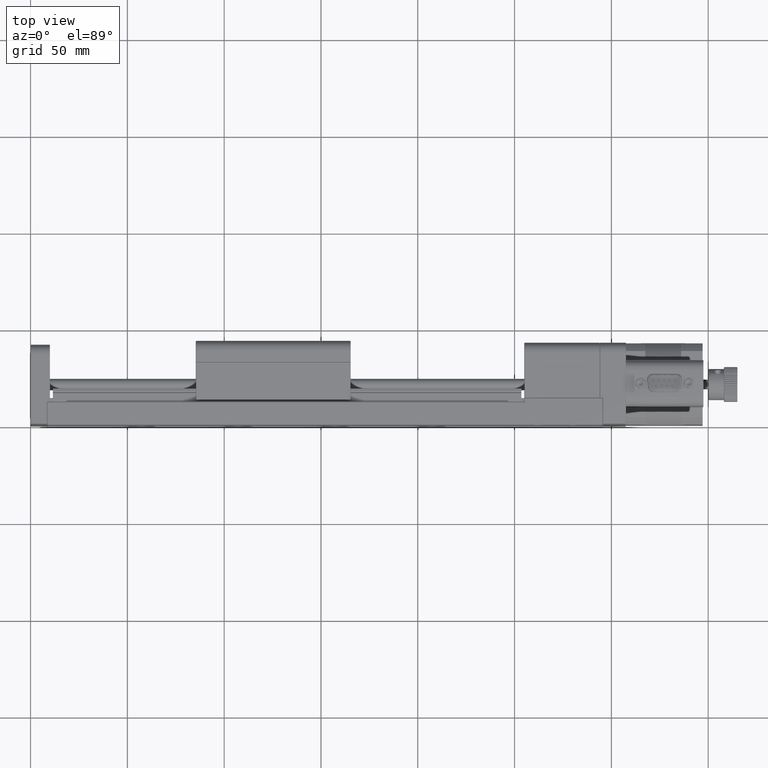
[diagram: clean part render]
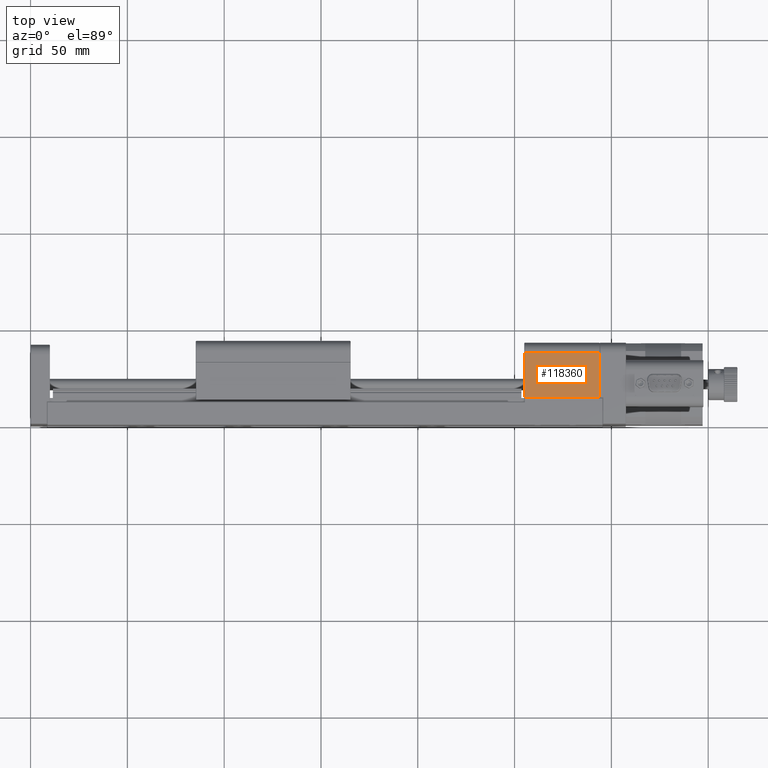
[diagram: same view with one face highlighted and labeled with its STEP entity id]
A machine part, top view. The second image highlights one B-rep face of the part: STEP entity #118360.
In plain terms, the highlighted planar face has unit normal (-0, 0, -1).
Its self-contained STEP definition (entity closure, byte-faithful):
#517 = AXIS2_PLACEMENT_3D ( 'NONE', #84631, #72528, #61881 ) ;
#1774 = VERTEX_POINT ( 'NONE', #40877 ) ;
#2677 = EDGE_CURVE ( 'NONE', #63181, #1774, #142197, .T. ) ;
#6092 = ORIENTED_EDGE ( 'NONE', *, *, #2677, .T. ) ;
#16855 = CARTESIAN_POINT ( 'NONE',  ( 293.7000000000000500, 14.30000000000000600, -6.938893903907228400E-015 ) ) ;
#17361 = VECTOR ( 'NONE', #20483, 1000.000000000000000 ) ;
#20483 = DIRECTION ( 'NONE',  ( -5.259611230495325800E-017, 1.000000000000000000, 1.531653414840118200E-016 ) ) ;
#22216 = LINE ( 'NONE', #77145, #68925 ) ;
#23086 = VERTEX_POINT ( 'NONE', #16855 ) ;
#32548 = CARTESIAN_POINT ( 'NONE',  ( 293.6999999999999900, 37.50000000000001400, -6.938893903907228400E-015 ) ) ;
#39609 = ORIENTED_EDGE ( 'NONE', *, *, #81257, .T. ) ;
#40877 = CARTESIAN_POINT ( 'NONE',  ( 255.3000000000000400, 37.50000000000001400, -6.938893903907228400E-015 ) ) ;
#51174 = CARTESIAN_POINT ( 'NONE',  ( 255.0000000000000600, 37.50000000000001400, -6.938893903907228400E-015 ) ) ;
#56282 = VERTEX_POINT ( 'NONE', #60691 ) ;
#59482 = VECTOR ( 'NONE', #143081, 1000.000000000000000 ) ;
#60691 = CARTESIAN_POINT ( 'NONE',  ( 255.3000000000000400, 14.30000000000000600, -6.938893903907228400E-015 ) ) ;
#61881 = DIRECTION ( 'NONE',  ( -1.000000000000000000, -5.909083931956453400E-018, 0.0000000000000000000 ) ) ;
#63181 = VERTEX_POINT ( 'NONE', #32548 ) ;
#67892 = CARTESIAN_POINT ( 'NONE',  ( 255.0000000000000600, 14.30000000000000600, -6.938893903907228400E-015 ) ) ;
#68925 = VECTOR ( 'NONE', #76650, 1000.000000000000000 ) ;
#72528 = DIRECTION ( 'NONE',  ( -6.680501037558801200E-034, 1.130547664322469200E-016, -1.000000000000000000 ) ) ;
#74451 = PLANE ( 'NONE',  #517 ) ;
#76650 = DIRECTION ( 'NONE',  ( 5.259611230495325800E-017, -1.000000000000000000, -1.531653414840118200E-016 ) ) ;
#76979 = CARTESIAN_POINT ( 'NONE',  ( 293.6999999999999900, 37.50000000000000700, -6.938893903907228400E-015 ) ) ;
#77145 = CARTESIAN_POINT ( 'NONE',  ( 255.3000000000000400, 14.00000000000001100, -6.938893903907228400E-015 ) ) ;
#78475 = LINE ( 'NONE', #67892, #59482 ) ;
#81257 = EDGE_CURVE ( 'NONE', #56282, #23086, #78475, .T. ) ;
#82016 = VECTOR ( 'NONE', #139799, 1000.000000000000000 ) ;
#84631 = CARTESIAN_POINT ( 'NONE',  ( 255.0000000000000600, 14.00000000000001100, -6.938893903907228400E-015 ) ) ;
#88730 = EDGE_CURVE ( 'NONE', #23086, #63181, #138150, .T. ) ;
#89119 = EDGE_CURVE ( 'NONE', #1774, #56282, #22216, .T. ) ;
#99991 = FACE_OUTER_BOUND ( 'NONE', #116203, .T. ) ;
#109606 = ORIENTED_EDGE ( 'NONE', *, *, #89119, .T. ) ;
#116203 = EDGE_LOOP ( 'NONE', ( #6092, #109606, #39609, #122467 ) ) ;
#118360 = ADVANCED_FACE ( 'NONE', ( #99991 ), #74451, .F. ) ;
#122467 = ORIENTED_EDGE ( 'NONE', *, *, #88730, .T. ) ;
#138150 = LINE ( 'NONE', #76979, #17361 ) ;
#139799 = DIRECTION ( 'NONE',  ( -1.000000000000000000, -5.909083931956453400E-018, -0.0000000000000000000 ) ) ;
#142197 = LINE ( 'NONE', #51174, #82016 ) ;
#143081 = DIRECTION ( 'NONE',  ( 1.000000000000000000, 5.909083931956453400E-018, 0.0000000000000000000 ) ) ;